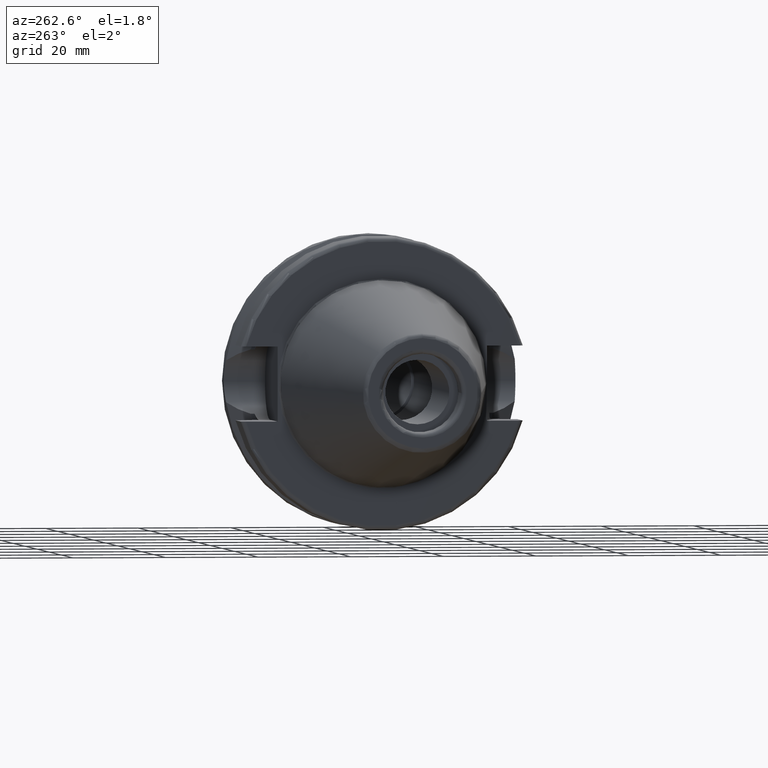
[diagram: clean part render]
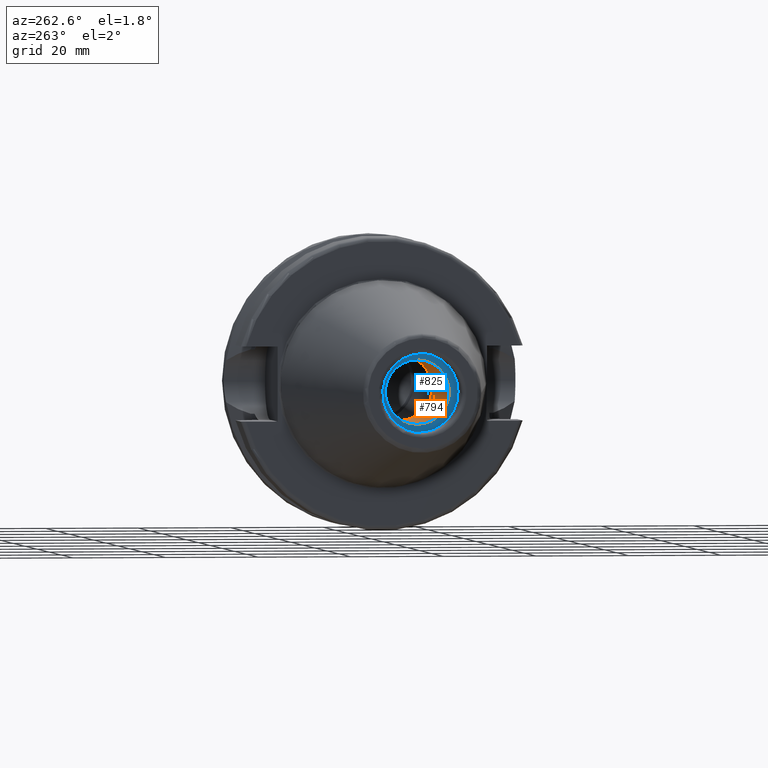
[diagram: same view with the hole feature highlighted: cylindrical wall and planar end face, labeled with their STEP entity ids]
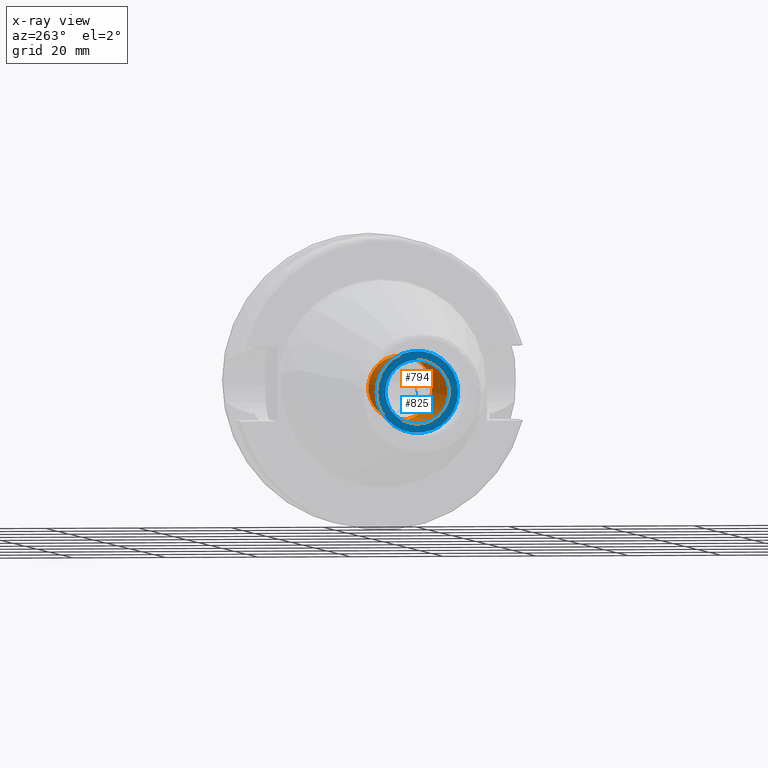
[diagram: x-ray of the same camera — body ghosted, the hole faces saturated]
A machine part, auxiliary view. The highlighted faces form one hole feature of diameter 13.835 mm: the cylindrical wall (entity #794, orange) and its adjacent planar end face (entity #825, blue) — they share a circular edge in the B-rep.
The next image is the same camera in x-ray (body ghosted, the hole faces saturated) — the bore reads through the body.
Wall:
#72=CIRCLE('',#873,6.9175);
#75=CIRCLE('',#880,6.9175);
#118=CYLINDRICAL_SURFACE('',#879,6.9175);
#141=FACE_OUTER_BOUND('',#196,.T.);
#196=EDGE_LOOP('',(#587,#588,#589,#590));
#261=LINE('',#1476,#305);
#305=VECTOR('',#1017,6.9175);
#356=VERTEX_POINT('',#1462);
#359=VERTEX_POINT('',#1474);
#440=EDGE_CURVE('',#356,#356,#72,.T.);
#445=EDGE_CURVE('',#359,#359,#75,.T.);
#446=EDGE_CURVE('',#359,#356,#261,.T.);
#587=ORIENTED_EDGE('',*,*,#445,.F.);
#588=ORIENTED_EDGE('',*,*,#446,.T.);
#589=ORIENTED_EDGE('',*,*,#440,.T.);
#590=ORIENTED_EDGE('',*,*,#446,.F.);
#794=ADVANCED_FACE('',(#141),#118,.F.);
#873=AXIS2_PLACEMENT_3D('',#1463,#999,#1000);
#879=AXIS2_PLACEMENT_3D('',#1473,#1013,#1014);
#880=AXIS2_PLACEMENT_3D('',#1475,#1015,#1016);
#999=DIRECTION('center_axis',(1.,0.,0.));
#1000=DIRECTION('ref_axis',(0.,0.,1.));
#1013=DIRECTION('center_axis',(-1.,0.,0.));
#1014=DIRECTION('ref_axis',(0.,0.,1.));
#1015=DIRECTION('center_axis',(1.,0.,0.));
#1016=DIRECTION('ref_axis',(0.,0.,1.));
#1017=DIRECTION('',(1.,0.,0.));
#1462=CARTESIAN_POINT('',(-27.94,8.47149423310182E-16,-6.9175));
#1463=CARTESIAN_POINT('Origin',(-27.94,0.,0.));
#1473=CARTESIAN_POINT('Origin',(-43.9,0.,0.));
#1474=CARTESIAN_POINT('',(-56.4,8.47149423310182E-16,-6.9175));
#1475=CARTESIAN_POINT('Origin',(-56.4,0.,0.));
#1476=CARTESIAN_POINT('',(-43.9,-8.47149423310182E-16,-6.9175));
End face:
#34=PLANE('',#942);
#59=FACE_BOUND('',#229,.T.);
#75=CIRCLE('',#880,6.9175);
#107=CIRCLE('',#943,8.8);
#172=FACE_OUTER_BOUND('',#228,.T.);
#228=EDGE_LOOP('',(#759));
#229=EDGE_LOOP('',(#760));
#359=VERTEX_POINT('',#1474);
#415=VERTEX_POINT('',#1750);
#445=EDGE_CURVE('',#359,#359,#75,.T.);
#531=EDGE_CURVE('',#415,#415,#107,.T.);
#759=ORIENTED_EDGE('',*,*,#531,.F.);
#760=ORIENTED_EDGE('',*,*,#445,.T.);
#825=ADVANCED_FACE('',(#172,#59),#34,.T.);
#880=AXIS2_PLACEMENT_3D('',#1475,#1015,#1016);
#942=AXIS2_PLACEMENT_3D('',#1749,#1174,#1175);
#943=AXIS2_PLACEMENT_3D('',#1751,#1176,#1177);
#1015=DIRECTION('center_axis',(1.,0.,0.));
#1016=DIRECTION('ref_axis',(0.,0.,1.));
#1174=DIRECTION('center_axis',(-1.,0.,0.));
#1175=DIRECTION('ref_axis',(0.,0.,1.));
#1176=DIRECTION('center_axis',(1.,0.,0.));
#1177=DIRECTION('ref_axis',(0.,0.,-1.));
#1474=CARTESIAN_POINT('',(-56.4,8.47149423310182E-16,-6.9175));
#1475=CARTESIAN_POINT('Origin',(-56.4,0.,0.));
#1749=CARTESIAN_POINT('Origin',(-56.4,8.8,0.));
#1750=CARTESIAN_POINT('',(-56.4,-8.8,-1.07768918324967E-15));
#1751=CARTESIAN_POINT('Origin',(-56.4,0.,0.));